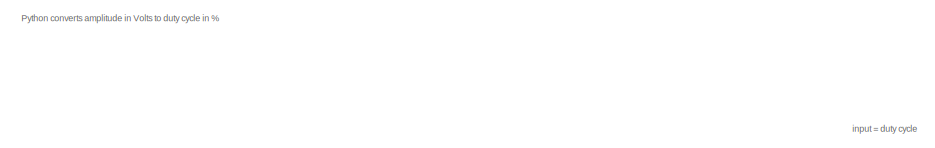
[diagram: root canvas - part 1/7, top center region]
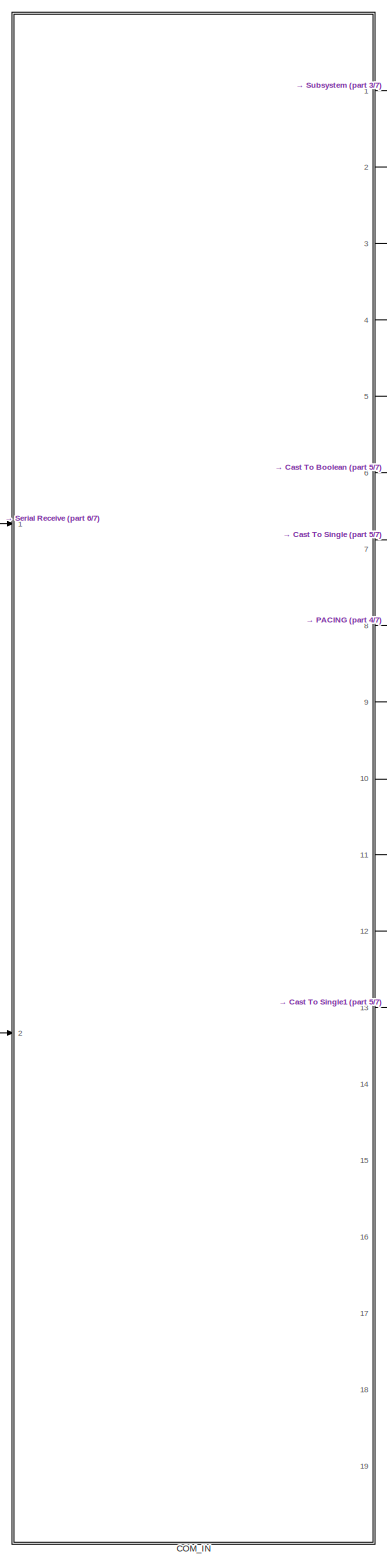
[diagram: root canvas - part 2/7, middle left region]
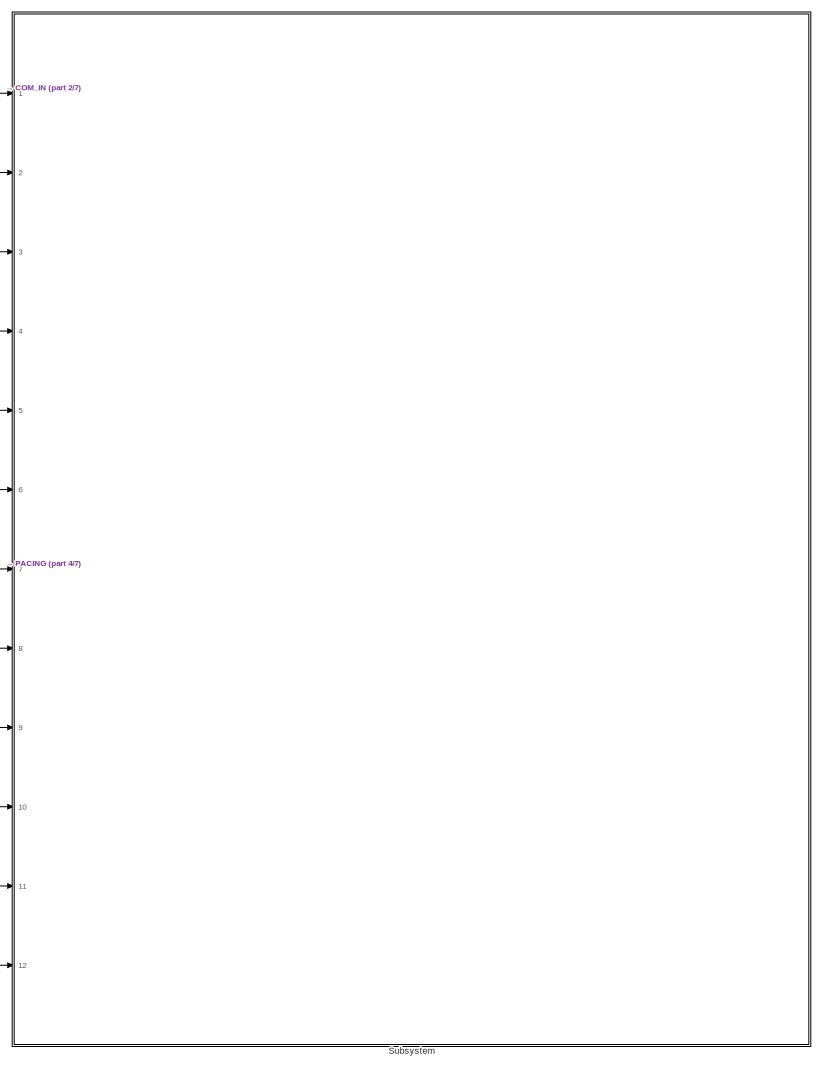
[diagram: root canvas - part 3/7, top right region]
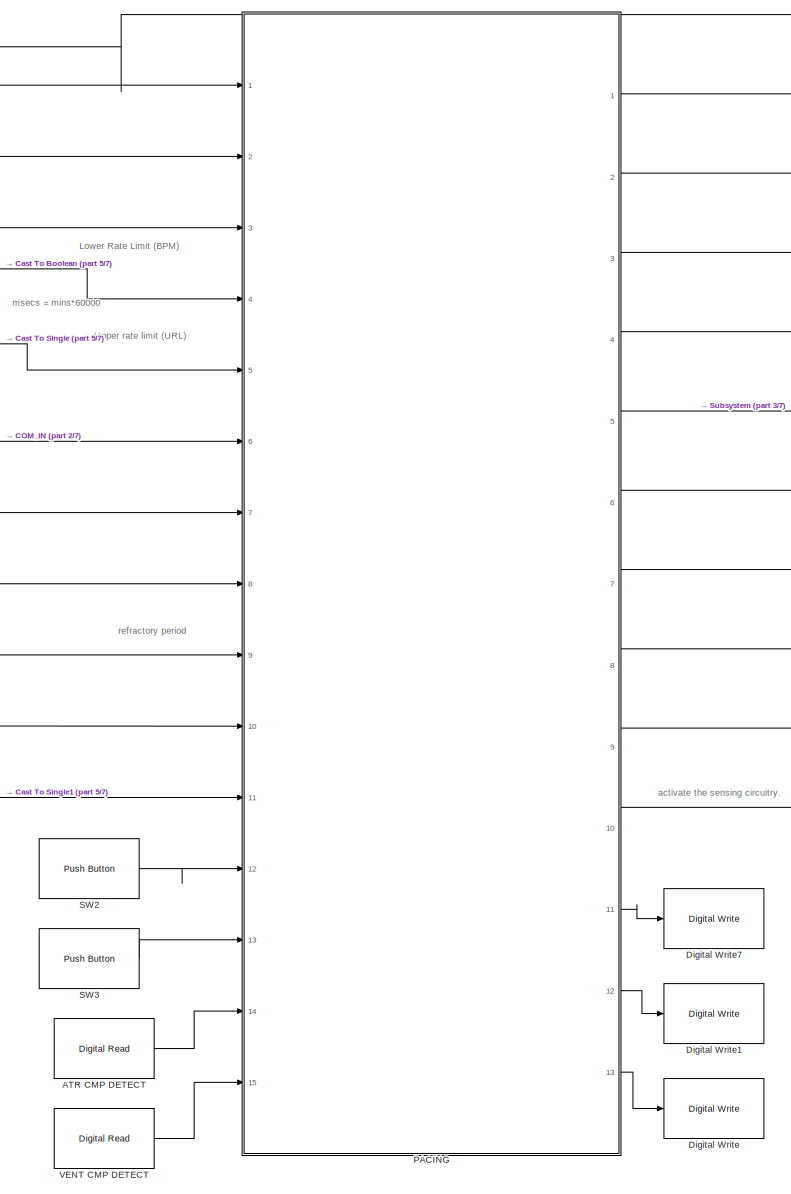
[diagram: root canvas - part 4/7, central region]
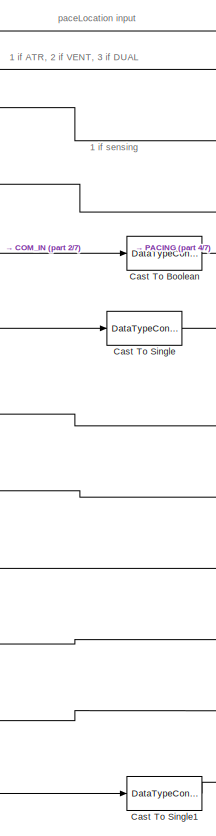
[diagram: root canvas - part 5/7, top center region]
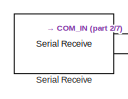
[diagram: root canvas - part 6/7, middle left region]
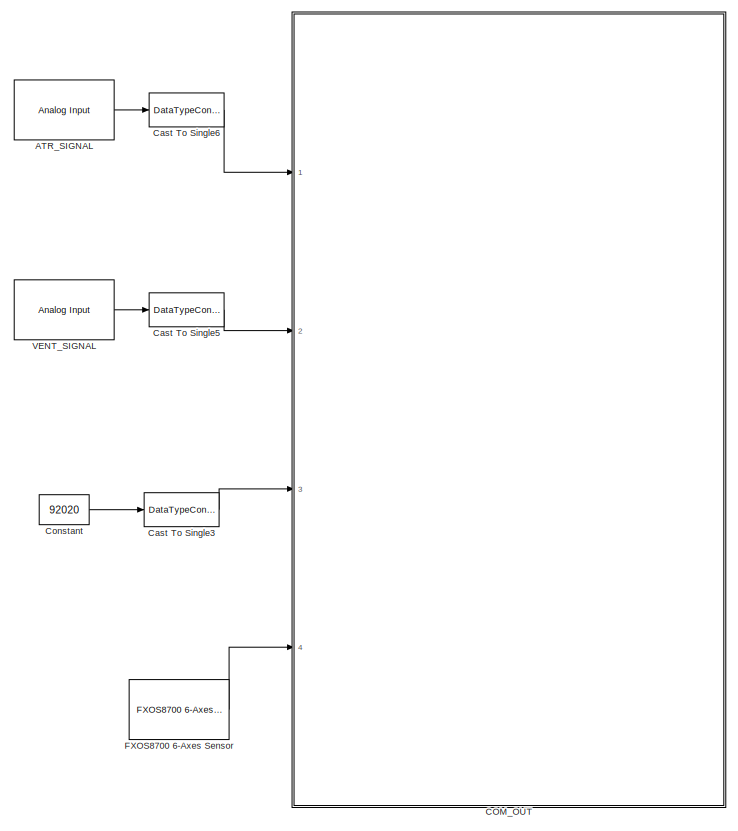
[diagram: root canvas - part 7/7, bottom left region]
MODEL slx_2a558df448ea
KIND model
CONFIG AbsTol = auto
CONFIG EnableMultiTasking = on
CONFIG FixedStep = 1e-3
CONFIG MaxStep = auto
CONFIG MinStep = auto
CONFIG RelTol = 1e-3
CONFIG SampleTimeConstraint = Unconstrained
CONFIG Solver = FixedStepAuto
CONFIG SolverName = FixedStepAuto
CONFIG StartTime = 0.0
CONFIG StopTime = 10.0
BLOCK [Reference] ATR CMP DETECT  REF=frdmk64flib/Digital Read
  Ports = [0, 1]
  SourceBlock = frdmk64flib/Digital Read
  SourceProductBaseCode = EC_FRDM_K64F
  SourceType = freedomk64f.DigitalRead
BLOCK [Reference] ATR_SIGNAL  REF=frdmk64flib/Analog Input
  Ports = [0, 1]
  SourceBlock = frdmk64flib/Analog Input
  SourceProductBaseCode = EC_FRDM_K64F
  SourceType = freedomk64f.AnalogInput
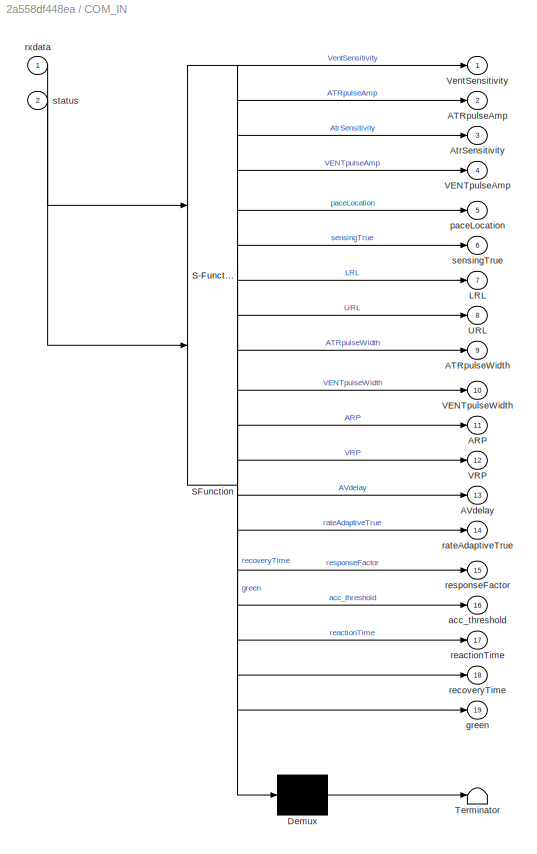
BLOCK [SubSystem] COM_IN
  ErrorFcn = Stateflow.Translate.translate
  PermitHierarchicalResolution = ExplicitOnly
  PortSchema = {"entries":[{"content":{"sides":[{"content":{"connectorIds":["In1","In2"]},"type":"ConnectorPlacement.EquallySpacedRectSide","uuid":"708f6c47-59ba-4c62-823e-aceb534f7d4e"},{"content":{"connectorIds":["Out1","Out3","Out2","Out4","Out5","Out6","Out7","Out8","Out9","Out10","Out11","Out12","Out13","Out14","Out15","Out16","Out17","Out18","Out19"],"side":"RIGHT"},"type":"ConnectorPlacement.EquallySpaced...<+384ch>
  Ports = [2, 19]
  RequestExecContextInheritance = off
  SFBlockType = Chart
  TreatAsAtomicUnit = on
BLOCK [Demux] COM_IN/ Demux 
  Outputs = 1
  Ports = [1, 1]
BLOCK [S-Function] COM_IN/ SFunction 
  EnableBusSupport = on
  FunctionName = sf_sfun
  PortCounts = [2 20]
  Ports = [2, 20]
  SFcnIsStateOwnerBlock = off
  SFunctionDeploymentMode = off
  Tag = Stateflow S-Function 3
BLOCK [Terminator] COM_IN/ Terminator 
BLOCK [Outport] COM_IN/ARP
  Port = 11
BLOCK [Outport] COM_IN/ATRpulseAmp
  Port = 2
BLOCK [Outport] COM_IN/ATRpulseWidth
  Port = 9
BLOCK [Outport] COM_IN/AVdelay
  Port = 13
BLOCK [Outport] COM_IN/AtrSensitivity
  Port = 3
BLOCK [Outport] COM_IN/LRL
  Port = 7
BLOCK [Outport] COM_IN/URL
  Port = 8
BLOCK [Outport] COM_IN/VENTpulseAmp
  Port = 4
BLOCK [Outport] COM_IN/VENTpulseWidth
  Port = 10
BLOCK [Outport] COM_IN/VRP
  Port = 12
BLOCK [Outport] COM_IN/VentSensitivity
BLOCK [Outport] COM_IN/acc_threshold
  Port = 16
BLOCK [Outport] COM_IN/green
  Port = 19
BLOCK [Outport] COM_IN/paceLocation
  Port = 5
BLOCK [Outport] COM_IN/rateAdaptiveTrue
  Port = 14
BLOCK [Outport] COM_IN/reactionTime
  Port = 17
BLOCK [Outport] COM_IN/recoveryTime
  Port = 18
BLOCK [Outport] COM_IN/responseFactor
  Port = 15
BLOCK [Inport] COM_IN/rxdata
BLOCK [Outport] COM_IN/sensingTrue
  Port = 6
BLOCK [Inport] COM_IN/status
  Port = 2
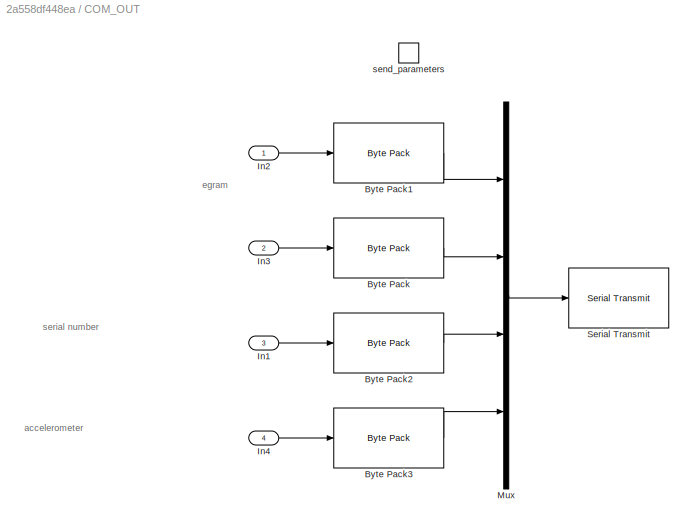
BLOCK [SubSystem] COM_OUT
  Ports = [4, 0, 0, 1]
  RequestExecContextInheritance = off
BLOCK [Reference] COM_OUT/Byte Pack  REF=etargetslib/Byte Pack
  Ports = [1, 1]
  SourceBlock = etargetslib/Byte Pack
  SourceProductBaseCode = ME
  SourceType = Byte pack
BLOCK [Reference] COM_OUT/Byte Pack1  REF=etargetslib/Byte Pack
  Ports = [1, 1]
  SourceBlock = etargetslib/Byte Pack
  SourceProductBaseCode = ME
  SourceType = Byte pack
BLOCK [Reference] COM_OUT/Byte Pack2  REF=etargetslib/Byte Pack
  Ports = [1, 1]
  SourceBlock = etargetslib/Byte Pack
  SourceProductBaseCode = ME
  SourceType = Byte pack
BLOCK [Reference] COM_OUT/Byte Pack3  REF=etargetslib/Byte Pack
  Ports = [1, 1]
  SourceBlock = etargetslib/Byte Pack
  SourceProductBaseCode = ME
  SourceType = Byte pack
BLOCK [Inport] COM_OUT/In1
  Port = 3
BLOCK [Inport] COM_OUT/In2
BLOCK [Inport] COM_OUT/In3
  Port = 2
BLOCK [Inport] COM_OUT/In4
  Port = 4
BLOCK [Mux] COM_OUT/Mux
  DisplayOption = bar
  Ports = [4, 1]
BLOCK [Reference] COM_OUT/Serial Transmit  REF=frdmk64flib/Serial Transmit
  Ports = [1]
  SourceBlock = frdmk64flib/Serial Transmit
  SourceProductBaseCode = EC_FRDM_K64F
  SourceType = freedomk64f.SCIWrite
BLOCK [TriggerPort] COM_OUT/send_parameters
  FunctionName = send_parameters
  IsSimulinkFunction = on
  Ports = []
  StatesWhenEnabling = held
  TriggerType = function-call
  VariantControl = (inherit)
BLOCK [DataTypeConversion] Cast To Boolean
  OutDataTypeStr = boolean
  RndMeth = Floor
  SaturateOnIntegerOverflow = off
BLOCK [DataTypeConversion] Cast To Single
  OutDataTypeStr = single
  RndMeth = Floor
  SaturateOnIntegerOverflow = off
BLOCK [DataTypeConversion] Cast To Single1
  OutDataTypeStr = single
  RndMeth = Floor
  SaturateOnIntegerOverflow = off
BLOCK [DataTypeConversion] Cast To Single3
  OutDataTypeStr = double
  RndMeth = Floor
  SaturateOnIntegerOverflow = off
BLOCK [DataTypeConversion] Cast To Single5
  OutDataTypeStr = double
  RndMeth = Floor
  SaturateOnIntegerOverflow = off
BLOCK [DataTypeConversion] Cast To Single6
  OutDataTypeStr = double
  RndMeth = Floor
  SaturateOnIntegerOverflow = off
BLOCK [Constant] Constant
  Value = 92020
BLOCK [Reference] Digital Write  REF=frdmk64flib/Digital Write
  Ports = [1]
  SourceBlock = frdmk64flib/Digital Write
  SourceProductBaseCode = EC_FRDM_K64F
  SourceType = freedomk64f.DigitalWrite
BLOCK [Reference] Digital Write1  REF=frdmk64flib/Digital Write
  Ports = [1]
  SourceBlock = frdmk64flib/Digital Write
  SourceProductBaseCode = EC_FRDM_K64F
  SourceType = freedomk64f.DigitalWrite
BLOCK [Reference] Digital Write7  REF=frdmk64flib/Digital Write
  Ports = [1]
  SourceBlock = frdmk64flib/Digital Write
  SourceProductBaseCode = EC_FRDM_K64F
  SourceType = freedomk64f.DigitalWrite
BLOCK [Reference] FXOS8700 6-Axes Sensor  REF=frdmk64flib/FXOS8700 6-Axes Sensor
  Ports = [0, 1]
  SourceBlock = frdmk64flib/FXOS8700 6-Axes Sensor
  SourceProductBaseCode = EC_FRDM_K64F
  SourceType = freedomk64f.fxos8700
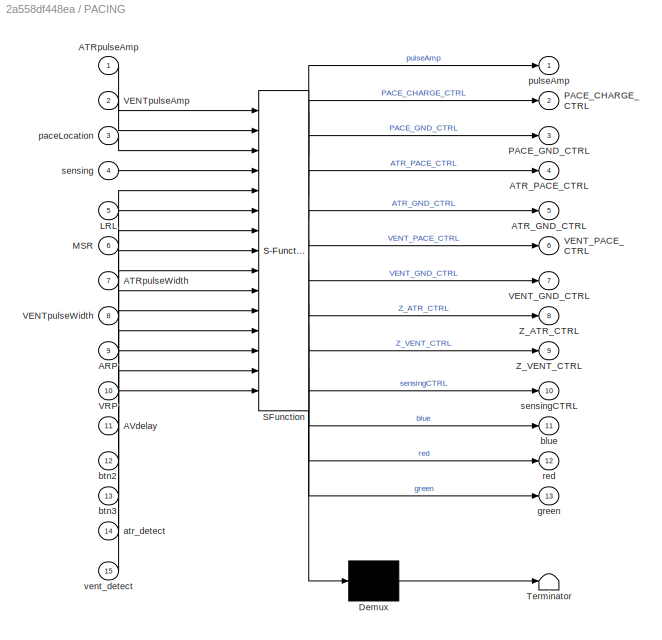
BLOCK [SubSystem] PACING
  ErrorFcn = Stateflow.Translate.translate
  PermitHierarchicalResolution = ExplicitOnly
  Ports = [15, 13]
  RequestExecContextInheritance = off
  SFBlockType = Chart
  TreatAsAtomicUnit = on
BLOCK [Demux] PACING/ Demux 
  Outputs = 1
  Ports = [1, 1]
BLOCK [S-Function] PACING/ SFunction 
  EnableBusSupport = on
  FunctionName = sf_sfun
  PortCounts = [15 14]
  Ports = [15, 14]
  SFcnIsStateOwnerBlock = off
  SFunctionDeploymentMode = off
  Tag = Stateflow S-Function 1
BLOCK [Terminator] PACING/ Terminator 
BLOCK [Inport] PACING/ARP
  Port = 9
BLOCK [Outport] PACING/ATR_GND_CTRL
  Port = 5
BLOCK [Outport] PACING/ATR_PACE_CTRL
  Port = 4
BLOCK [Inport] PACING/ATRpulseAmp
BLOCK [Inport] PACING/ATRpulseWidth
  Port = 7
BLOCK [Inport] PACING/AVdelay
  Port = 11
BLOCK [Inport] PACING/LRL
  Port = 5
BLOCK [Inport] PACING/MSR
  Port = 6
BLOCK [Outport] PACING/PACE_CHARGE_CTRL
  Port = 2
BLOCK [Outport] PACING/PACE_GND_CTRL
  Port = 3
BLOCK [Outport] PACING/VENT_GND_CTRL
  Port = 7
BLOCK [Outport] PACING/VENT_PACE_CTRL
  Port = 6
BLOCK [Inport] PACING/VENTpulseAmp
  Port = 2
BLOCK [Inport] PACING/VENTpulseWidth
  Port = 8
BLOCK [Inport] PACING/VRP
  Port = 10
BLOCK [Outport] PACING/Z_ATR_CTRL
  Port = 8
BLOCK [Outport] PACING/Z_VENT_CTRL
  Port = 9
BLOCK [Inport] PACING/atr_detect
  Port = 14
BLOCK [Outport] PACING/blue
  Port = 11
BLOCK [Inport] PACING/btn2
  Port = 12
BLOCK [Inport] PACING/btn3
  Port = 13
BLOCK [Outport] PACING/green
  Port = 13
BLOCK [Inport] PACING/paceLocation
  Port = 3
BLOCK [Outport] PACING/pulseAmp
BLOCK [Outport] PACING/red
  Port = 12
BLOCK [Inport] PACING/sensing
  Port = 4
BLOCK [Outport] PACING/sensingCTRL
  Port = 10
BLOCK [Inport] PACING/vent_detect
  Port = 15
BLOCK [Reference] SW2  REF=frdmk64flib/Push Button
  Ports = [0, 1]
  SourceBlock = frdmk64flib/Push Button
  SourceProductBaseCode = EC_FRDM_K64F
  SourceType = freedomk64f.PushButton
BLOCK [Reference] SW3  REF=frdmk64flib/Push Button
  Ports = [0, 1]
  SourceBlock = frdmk64flib/Push Button
  SourceProductBaseCode = EC_FRDM_K64F
  SourceType = freedomk64f.PushButton
BLOCK [Reference] Serial Receive  REF=frdmk64flib/Serial Receive
  Ports = [0, 2]
  SourceBlock = frdmk64flib/Serial Receive
  SourceProductBaseCode = EC_FRDM_K64F
  SourceType = freedomk64f.SCIRead
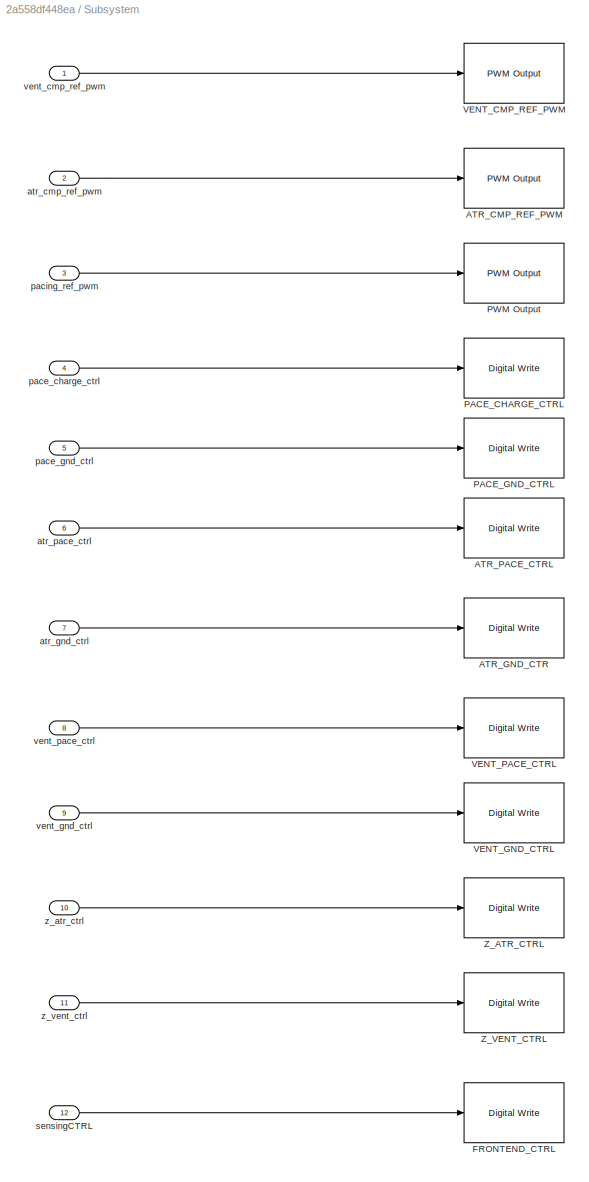
BLOCK [SubSystem] Subsystem
  Ports = [12]
  RequestExecContextInheritance = off
BLOCK [Inport] Subsystem/ z_vent_ctrl
  Port = 11
BLOCK [Reference] Subsystem/ATR_CMP_REF_PWM  REF=frdmk64flib/PWM Output
  Ports = [1]
  SourceBlock = frdmk64flib/PWM Output
  SourceProductBaseCode = EC_FRDM_K64F
  SourceType = freedomk64f.PWMOutput
BLOCK [Reference] Subsystem/ATR_GND_CTR  REF=frdmk64flib/Digital Write
  Ports = [1]
  SourceBlock = frdmk64flib/Digital Write
  SourceProductBaseCode = EC_FRDM_K64F
  SourceType = freedomk64f.DigitalWrite
BLOCK [Reference] Subsystem/ATR_PACE_CTRL  REF=frdmk64flib/Digital Write
  Ports = [1]
  SourceBlock = frdmk64flib/Digital Write
  SourceProductBaseCode = EC_FRDM_K64F
  SourceType = freedomk64f.DigitalWrite
BLOCK [Reference] Subsystem/FRONTEND_CTRL  REF=frdmk64flib/Digital Write
  Ports = [1]
  SourceBlock = frdmk64flib/Digital Write
  SourceProductBaseCode = EC_FRDM_K64F
  SourceType = freedomk64f.DigitalWrite
BLOCK [Reference] Subsystem/PACE_CHARGE_CTRL  REF=frdmk64flib/Digital Write
  Ports = [1]
  SourceBlock = frdmk64flib/Digital Write
  SourceProductBaseCode = EC_FRDM_K64F
  SourceType = freedomk64f.DigitalWrite
BLOCK [Reference] Subsystem/PACE_GND_CTRL  REF=frdmk64flib/Digital Write
  Ports = [1]
  SourceBlock = frdmk64flib/Digital Write
  SourceProductBaseCode = EC_FRDM_K64F
  SourceType = freedomk64f.DigitalWrite
BLOCK [Reference] Subsystem/PWM Output  REF=frdmk64flib/PWM Output
  Ports = [1]
  SourceBlock = frdmk64flib/PWM Output
  SourceProductBaseCode = EC_FRDM_K64F
  SourceType = freedomk64f.PWMOutput
BLOCK [Reference] Subsystem/VENT_CMP_REF_PWM  REF=frdmk64flib/PWM Output
  Ports = [1]
  SourceBlock = frdmk64flib/PWM Output
  SourceProductBaseCode = EC_FRDM_K64F
  SourceType = freedomk64f.PWMOutput
BLOCK [Reference] Subsystem/VENT_GND_CTRL  REF=frdmk64flib/Digital Write
  Ports = [1]
  SourceBlock = frdmk64flib/Digital Write
  SourceProductBaseCode = EC_FRDM_K64F
  SourceType = freedomk64f.DigitalWrite
BLOCK [Reference] Subsystem/VENT_PACE_CTRL  REF=frdmk64flib/Digital Write
  Ports = [1]
  SourceBlock = frdmk64flib/Digital Write
  SourceProductBaseCode = EC_FRDM_K64F
  SourceType = freedomk64f.DigitalWrite
BLOCK [Reference] Subsystem/Z_ATR_CTRL  REF=frdmk64flib/Digital Write
  Ports = [1]
  SourceBlock = frdmk64flib/Digital Write
  SourceProductBaseCode = EC_FRDM_K64F
  SourceType = freedomk64f.DigitalWrite
BLOCK [Reference] Subsystem/Z_VENT_CTRL  REF=frdmk64flib/Digital Write
  Ports = [1]
  SourceBlock = frdmk64flib/Digital Write
  SourceProductBaseCode = EC_FRDM_K64F
  SourceType = freedomk64f.DigitalWrite
BLOCK [Inport] Subsystem/atr_cmp_ref_pwm
  Port = 2
BLOCK [Inport] Subsystem/atr_gnd_ctrl
  Port = 7
BLOCK [Inport] Subsystem/atr_pace_ctrl
  Port = 6
BLOCK [Inport] Subsystem/pace_charge_ctrl
  Port = 4
BLOCK [Inport] Subsystem/pace_gnd_ctrl
  Port = 5
BLOCK [Inport] Subsystem/pacing_ref_pwm
  Port = 3
BLOCK [Inport] Subsystem/sensingCTRL
  Port = 12
BLOCK [Inport] Subsystem/vent_cmp_ref_pwm
BLOCK [Inport] Subsystem/vent_gnd_ctrl
  Port = 9
BLOCK [Inport] Subsystem/vent_pace_ctrl
  Port = 8
BLOCK [Inport] Subsystem/z_atr_ctrl
  Port = 10
BLOCK [Reference] VENT CMP DETECT  REF=frdmk64flib/Digital Read
  Ports = [0, 1]
  SourceBlock = frdmk64flib/Digital Read
  SourceProductBaseCode = EC_FRDM_K64F
  SourceType = freedomk64f.DigitalRead
BLOCK [Reference] VENT_SIGNAL  REF=frdmk64flib/Analog Input
  Ports = [0, 1]
  SourceBlock = frdmk64flib/Analog Input
  SourceProductBaseCode = EC_FRDM_K64F
  SourceType = freedomk64f.AnalogInput
ANNOTATION (root): 1 if ATR, 2 if VENT, 3 if DUAL
ANNOTATION (root): 1 if sensing
ANNOTATION (root): Python converts amplitude in Volts to duty cycle in %
ANNOTATION (root): Lower Rate Limit (BPM)
ANNOTATION (root): Upper rate limit (URL)
ANNOTATION (root): activate the sensing circuitry.
ANNOTATION (root): input = duty cycle
ANNOTATION (root): msecs = mins*60000
ANNOTATION (root): paceLocation input
ANNOTATION (root): refractory period
ANNOTATION COM_OUT: accelerometer
ANNOTATION COM_OUT: egram
ANNOTATION COM_OUT: serial number
LINE ATR CMP DETECT:1 -> PACING:14
LINE ATR_SIGNAL:1 -> Cast To Single6:1
LINE COM_IN:1 -> Subsystem:1
LINE COM_IN:10 -> PACING:8
LINE COM_IN:11 -> PACING:9
LINE COM_IN:12 -> PACING:10
LINE COM_IN:13 -> Cast To Single1:1
LINE COM_IN:2 -> PACING:1
LINE COM_IN:3 -> Subsystem:2
LINE COM_IN:4 -> PACING:2
LINE COM_IN:5 -> PACING:3
LINE COM_IN:6 -> Cast To Boolean:1
LINE COM_IN:7 -> Cast To Single:1
LINE COM_IN:8 -> PACING:6
LINE COM_IN:9 -> PACING:7
LINE COM_OUT/Byte Pack1:1 -> COM_OUT/Mux:1
LINE COM_OUT/Byte Pack2:1 -> COM_OUT/Mux:3
LINE COM_OUT/Byte Pack3:1 -> COM_OUT/Mux:4
LINE COM_OUT/Byte Pack:1 -> COM_OUT/Mux:2
LINE COM_OUT/In1:1 -> COM_OUT/Byte Pack2:1
LINE COM_OUT/In2:1 -> COM_OUT/Byte Pack1:1
LINE COM_OUT/In3:1 -> COM_OUT/Byte Pack:1
LINE COM_OUT/In4:1 -> COM_OUT/Byte Pack3:1
LINE COM_OUT/Mux:1 -> COM_OUT/Serial Transmit:1
LINE Cast To Boolean:1 -> PACING:4
LINE Cast To Single1:1 -> PACING:11
LINE Cast To Single3:1 -> COM_OUT:3
LINE Cast To Single5:1 -> COM_OUT:2
LINE Cast To Single6:1 -> COM_OUT:1
LINE Cast To Single:1 -> PACING:5
LINE Constant:1 -> Cast To Single3:1
LINE FXOS8700 6-Axes Sensor:1 -> COM_OUT:4
LINE PACING:1 -> Subsystem:3
LINE PACING:10 -> Subsystem:12
LINE PACING:11 -> Digital Write7:1
LINE PACING:12 -> Digital Write1:1
LINE PACING:13 -> Digital Write:1
LINE PACING:2 -> Subsystem:4
LINE PACING:3 -> Subsystem:5
LINE PACING:4 -> Subsystem:6
LINE PACING:5 -> Subsystem:7
LINE PACING:6 -> Subsystem:8
LINE PACING:7 -> Subsystem:9
LINE PACING:8 -> Subsystem:10
LINE PACING:9 -> Subsystem:11
LINE SW2:1 -> PACING:12
LINE SW3:1 -> PACING:13
LINE Serial Receive:1 -> COM_IN:1
LINE Serial Receive:2 -> COM_IN:2
LINE Subsystem/ z_vent_ctrl:1 -> Subsystem/Z_VENT_CTRL:1
LINE Subsystem/atr_cmp_ref_pwm:1 -> Subsystem/ATR_CMP_REF_PWM:1
LINE Subsystem/atr_gnd_ctrl:1 -> Subsystem/ATR_GND_CTR:1
LINE Subsystem/atr_pace_ctrl:1 -> Subsystem/ATR_PACE_CTRL:1
LINE Subsystem/pace_charge_ctrl:1 -> Subsystem/PACE_CHARGE_CTRL:1
LINE Subsystem/pace_gnd_ctrl:1 -> Subsystem/PACE_GND_CTRL:1
LINE Subsystem/pacing_ref_pwm:1 -> Subsystem/PWM Output:1
LINE Subsystem/sensingCTRL:1 -> Subsystem/FRONTEND_CTRL:1
LINE Subsystem/vent_cmp_ref_pwm:1 -> Subsystem/VENT_CMP_REF_PWM:1
LINE Subsystem/vent_gnd_ctrl:1 -> Subsystem/VENT_GND_CTRL:1
LINE Subsystem/vent_pace_ctrl:1 -> Subsystem/VENT_PACE_CTRL:1
LINE Subsystem/z_atr_ctrl:1 -> Subsystem/Z_ATR_CTRL:1
LINE VENT CMP DETECT:1 -> PACING:15
LINE VENT_SIGNAL:1 -> Cast To Single5:1
CHART PACING states=27 transitions=19
  STATE_LABEL '<!DOCTYPE HTML PUBLIC "-//W3C//DTD HTML 4.0//EN" "http://www.w3.org/TR/REC-html40/strict.dtd">\n<html><head><meta name="qrichtext" content="1" /><style type="text/css">\np, li { white-space: pre-wrap; }\n</style></head><body align="left" style=" font-family:\'Helvetica\'; font-size:12px; font-weight:400; font-style:normal;">\n<p align="left" style=" margin-top:0px; margin-bottom:0px; margin-left:0px; ma...<+121ch>'  <repeated x5 — deduplicated; at blocks: PACING, COM_IN>
  STATE_LABEL 'SENSING_VENT_TRUE \n%sensing'
  STATE_LABEL 'VENT_CHARGING_AND_DISCHARGE \nentry:\n% for this state paceLocation = 1\n%begin charge and discharge cycle for ventricle\nmsecPerPace = 60000.0/PPM_Rate; %new value in msec\nATR_PACE_CTRL = false;\nVENT_PACE_CTRL = false;\npulseAmp = VENTpulseAmp; % set amplitude\nPACE_CHARGE_CTRL = true;\nPACE_GND_CTRL = true;\nZ_VENT_CTRL = false;\nZ_ATR_CTRL = false\nVENT_GND_CTRL = true;\nATR_GND_CTRL = false;\n'
  STATE_LABEL 'VENT_PACING\nentry:\n% pace ventricle\nPACE_CHARGE_CTRL = false;\nPACE_GND_CTRL = true;\nVENT_PACE_CTRL = true;\nVENT_GND_CTRL = false;\nZ_VENT_CTRL = false;\nZ_ATR_CTRL = false;\nATR_GND_CTRL = false;\nATR_PACE_CTRL = false;\n'
  STATE_LABEL '<!DOCTYPE HTML PUBLIC "-//W3C//DTD HTML 4.0//EN" "http://www.w3.org/TR/REC-html40/strict.dtd">\n<html><head><meta name="qrichtext" content="1" /><style type="text/css">\np, li { white-space: pre-wrap; }\n</style></head><body align="left" style=" font-family:\'Helvetica\'; font-size:12px; font-weight:400; font-style:normal;">\n<p align="left" style=" margin-top:0px; margin-bottom:0px; margin-left:0px; ma...<+124ch>'  <repeated x5 — deduplicated; at blocks: PACING, COM_IN>
  STATE_LABEL '<!DOCTYPE HTML PUBLIC "-//W3C//DTD HTML 4.0//EN" "http://www.w3.org/TR/REC-html40/strict.dtd">\n<html><head><meta name="qrichtext" content="1" /><style type="text/css">\np, li { white-space: pre-wrap; }\n</style></head><body align="left" style=" font-family:\'Helvetica\'; font-size:12px; font-weight:400; font-style:normal;">\n<p align="left" style=" margin-top:0px; margin-bottom:0px; margin-left:0px; ma...<+123ch>'
  STATE_LABEL 'ATR_CHARGING_AND_DISCHARGE\nentry:\n% for this state paceLocation = 0\n%begin charge and discharge cycle for atrium\nmsecPerPace = 60000.0/PPM_Rate; %new value for pace timing with msec units\nsensingCTRL = true; %enables the sensing circuitry if sensing = 1\nATR_PACE_CTRL = false;\nVENT_PACE_CTRL = false;\npulseAmp = ATRpulseAmp; % set amplitude\nPACE_CHARGE_CTRL = true;\nPACE_GND_CTRL = true;\nZ_VENT_CTRL ...<+114ch>'
  STATE_LABEL 'ATR_PACING\nentry:\n% pace atrium\nPACE_CHARGE_CTRL = false;\nPACE_GND_CTRL = true;\nVENT_PACE_CTRL = false;\nVENT_GND_CTRL = false;\nZ_VENT_CTRL = false;\nZ_ATR_CTRL = false;\nATR_GND_CTRL = false;\nATR_PACE_CTRL = true;'
  STATE_LABEL '<!DOCTYPE HTML PUBLIC "-//W3C//DTD HTML 4.0//EN" "http://www.w3.org/TR/REC-html40/strict.dtd">\n<html><head><meta name="qrichtext" content="1" /><style type="text/css">\np, li { white-space: pre-wrap; }\n</style></head><body align="left" style=" font-family:\'Helvetica\'; font-size:12px; font-weight:400; font-style:normal;">\n<p align="left" style=" margin-top:0px; margin-bottom:0px; margin-left:0px; ma...<+120ch>'
  STATE_LABEL 'SENSING_ATR_TRUE \n%sensing'
  STATE_LABEL '<!DOCTYPE HTML PUBLIC "-//W3C//DTD HTML 4.0//EN" "http://www.w3.org/TR/REC-html40/strict.dtd">\n<html><head><meta name="qrichtext" content="1" /><style type="text/css">\np, li { white-space: pre-wrap; }\n</style></head><body align="left" style=" font-family:\'Helvetica\'; font-size:12px; font-weight:400; font-style:normal;">\n<p align="left" style=" margin-top:0px; margin-bottom:0px; margin-left:0px; ma...<+123ch>'
  STATE_LABEL 'DUAL_ATR_CHARGING_AND_DISCHARGE_VENT\nentry:\nmsecPerPace = 60000/PPM_Rate;\n% for this state paceLocation = 3\n%begin charge cycle for atrium\nATR_PACE_CTRL = false;\nVENT_PACE_CTRL = false;\npulseAmp = ATRpulseAmp; % set amplitude\nPACE_CHARGE_CTRL = true;\nPACE_GND_CTRL = true;\nZ_VENT_CTRL = false;\nZ_ATR_CTRL = false;\nVENT_GND_CTRL = true;\nATR_GND_CTRL = false;\nblue = true;\nred = false;\ngreen = false;'
  STATE_LABEL 'DUAL_ATR_PACING\nentry:\n% pace atrium\nPACE_CHARGE_CTRL = false;\nPACE_GND_CTRL = true;\nVENT_PACE_CTRL = false;\nVENT_GND_CTRL = false;\nZ_VENT_CTRL = false;\nZ_ATR_CTRL = false;\nATR_GND_CTRL = false;\nATR_PACE_CTRL = true;\n'
  STATE_LABEL 'pace ATR'
  STATE_LABEL 'DUAL_DISCHARGE_ATR_AND_VENT_CHARGING\nentry:\n%begin charge cycle for VENT\nATR_PACE_CTRL = false;\nVENT_PACE_CTRL = false;\npulseAmp = VENTpulseAmp;\nPACE_CHARGE_CTRL = true;\nPACE_GND_CTRL = true;\nZ_VENT_CTRL = false;\nZ_ATR_CTRL = false\nVENT_GND_CTRL = false;\nATR_GND_CTRL = true;\ngreen = true;'
  STATE_LABEL 'pace VENT'
  STATE_LABEL 'DUAL_VENT_PACING\nentry:\n% pace ventricle\nATR_GND_CTRL = false;\nATR_PACE_CTRL = false;\nPACE_CHARGE_CTRL = false;\nPACE_GND_CTRL = true;\nVENT_PACE_CTRL = true;\nVENT_GND_CTRL = false;\nZ_VENT_CTRL = false;\nZ_ATR_CTRL = false;\nred = true;'
  STATE_LABEL 'ATR_CHARGING_AND_DISCHARGE1\nentry:\n% for this state paceLocation = 0\n%begin charge and discharge cycle for atrium\nmsecPerPace = 60000.0/PPM_Rate; %new value for pace timing with msec units\nsensingCTRL = true; %enables the sensing circuitry if sensing = 1\nATR_PACE_CTRL = false;\nVENT_PACE_CTRL = false;\nPACE_CHARGE_CTRL = true;\nPACE_GND_CTRL = true;\nZ_VENT_CTRL = false;\nZ_ATR_CTRL = false;\nVENT_GND_C...<+33ch>'
  STATE_LABEL 'VENT_PACING1\nentry:\n% pace ventricle\nPACE_CHARGE_CTRL = false;\nPACE_GND_CTRL = true;\nVENT_PACE_CTRL = true;\nVENT_GND_CTRL = false;\nZ_VENT_CTRL = false;\nZ_ATR_CTRL = false;\nATR_GND_CTRL = false;\nATR_PACE_CTRL = false;\n'
  STATE_LABEL 'ATR_PACING1\nentry:\n% pace atrium\nPACE_CHARGE_CTRL = false;\nPACE_GND_CTRL = true;\nVENT_PACE_CTRL = false;\nVENT_GND_CTRL = false;\nZ_VENT_CTRL = false;\nZ_ATR_CTRL = false;\nATR_GND_CTRL = false;\nATR_PACE_CTRL = true;'
  STATE_LABEL 'VENT_CHARGING_AND_DISCHARGE1 \nentry:\n% for this state paceLocation = 1\n%begin charge and discharge cycle for ventricle\nmsecPerPace = 60000.0/PPM_Rate; %new value in msec\nATR_PACE_CTRL = false;\nVENT_PACE_CTRL = false;\nPACE_CHARGE_CTRL = true;\nPACE_GND_CTRL = true;\nZ_VENT_CTRL = false;\nZ_ATR_CTRL = false\nVENT_GND_CTRL = true;\nATR_GND_CTRL = false;\n'
CHART COM_IN states=6 transitions=9
  STATE_LABEL "SET_PARAMETERS\nentry:\npaceLocation = rxdata(3); %1 if ATRIUM, 2 if VENT, 3 if BOTH\nsensingTrue = rxdata(4); %1 if sensing, 0 if not\nLRL = rxdata(5);\nURL =  rxdata(6);\nATRpulseAmp = typecast(rxdata(7:10), 'single');\nVENTpulseAmp = typecast(rxdata(11:14),'single');\nATRpulseWidth = typecast(rxdata(15:18),'single');\nVENTpulseWidth = typecast(rxdata(19:22),'single');\nARP = typecast(rxdata(23:26),'singl...<+241ch>"
  STATE_LABEL 'INITIAL\nentry:\npaceLocation = 1; %1 if atr, 2 if vent, 3 if dual\nsensingTrue = 0; %1 if sensing, 0 if not\nLRL = 60; %ppm\nURL = 120; %ppm\nATRpulseAmp = 50; %duty cycle\nVENTpulseAmp = 50; %duty cycle\nATRpulseWidth = 10; %msec\nVENTpulseWidth = 10; %msec\nARP = 250; %msec\nVRP = 250; %msec\nAtrSensitivity = 50; %duty cycle\nVentSensitivity = 50; %duty cycle\nAVdelay = 50.0; %msec\n%other\nrateAdaptiveTrue = ...<+178ch>'
  STATE_LABEL 'STANDBY\n%waiting'
  STATE_LABEL 'ECHO_PARAMETERS\nentry:\nsend_parameters();'
CHART  states=0 transitions=0
CHART  states=0 transitions=0
